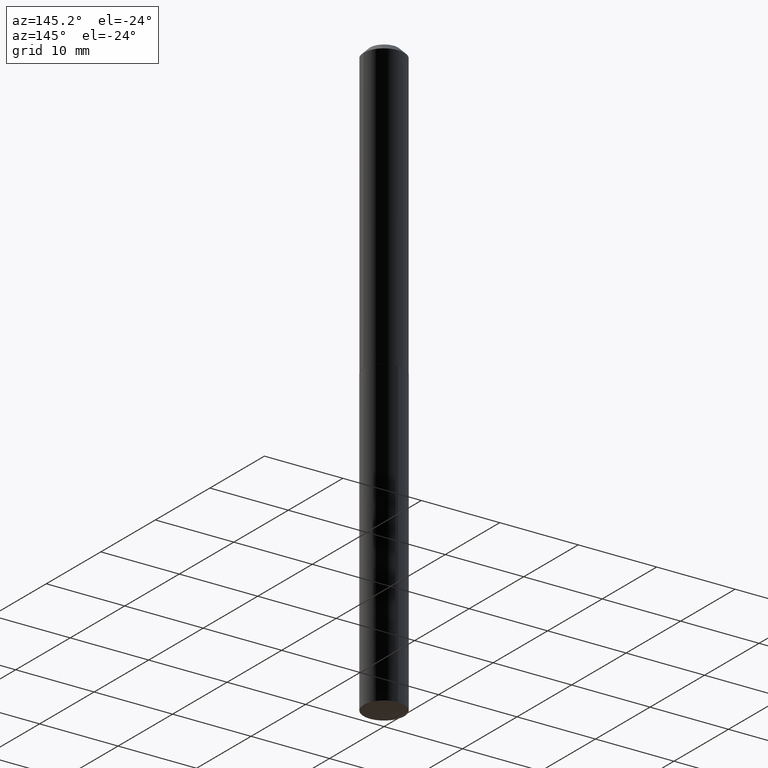
[diagram: clean part render]
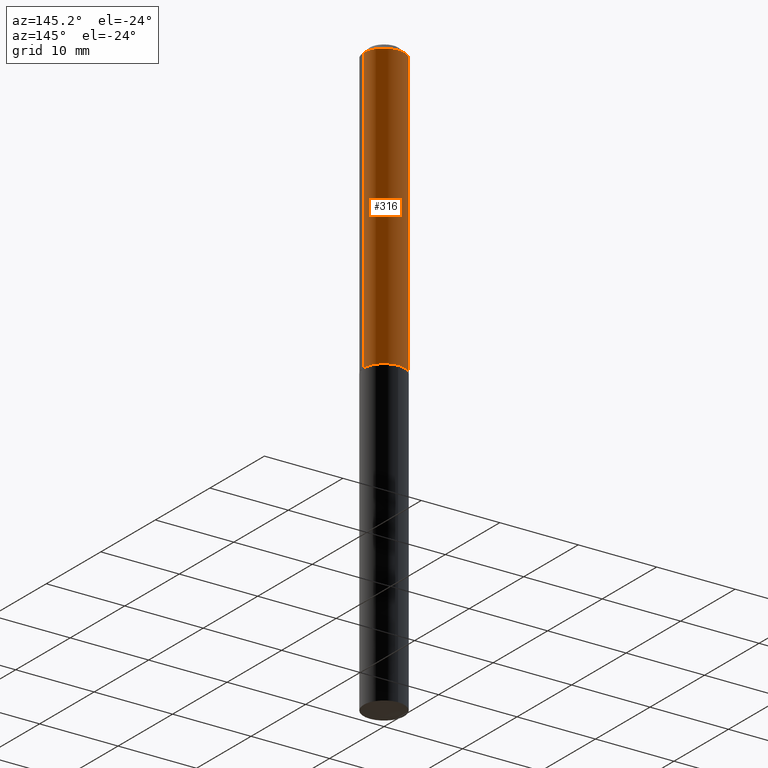
[diagram: same view with one face highlighted and labeled with its STEP entity id]
A machine part, auxiliary view. The second image highlights one B-rep face of the part: STEP entity #316.
In plain terms, the highlighted cylindrical surface (edge-blend (fillet) strip) has radius 2.5908 mm, axis along (-0, 0, 1).
Its self-contained STEP definition (entity closure, byte-faithful):
#1 = CARTESIAN_POINT ( 'NONE',  ( 7.642090019328598283E-31, -1.091087918388489651E-16, -0.03125000000000019429 ) ) ;
#2 = VERTEX_POINT ( 'NONE', #36 ) ;
#6 = ORIENTED_EDGE ( 'NONE', *, *, #367, .F. ) ;
#8 = VERTEX_POINT ( 'NONE', #282 ) ;
#23 = AXIS2_PLACEMENT_3D ( 'NONE', #208, #37, #273 ) ;
#33 = CYLINDRICAL_SURFACE ( 'NONE', #23, 0.1020000000000000767 ) ;
#34 = ORIENTED_EDGE ( 'NONE', *, *, #175, .T. ) ;
#36 = CARTESIAN_POINT ( 'NONE',  ( -0.1019999999999999934, -1.867234868448377340E-15, -0.03125000000000019429 ) ) ;
#37 = DIRECTION ( 'NONE',  ( -2.445468806185136597E-29, 3.491481338843145583E-15, 1.000000000000000000 ) ) ;
#65 = VERTEX_POINT ( 'NONE', #330 ) ;
#82 = AXIS2_PLACEMENT_3D ( 'NONE', #1, #278, #237 ) ;
#100 = CIRCLE ( 'NONE', #82, 0.1019999999999999934 ) ;
#102 = VERTEX_POINT ( 'NONE', #140 ) ;
#115 = DIRECTION ( 'NONE',  ( -2.445468806185136877E-29, 3.491481338843145188E-15, 1.000000000000000000 ) ) ;
#120 = VECTOR ( 'NONE', #115, 39.37007874015748143 ) ;
#140 = CARTESIAN_POINT ( 'NONE',  ( 0.1019999999999999934, -8.213709849628480961E-16, -0.03125000000000019429 ) ) ;
#175 = EDGE_CURVE ( 'NONE', #8, #2, #328, .T. ) ;
#183 = AXIS2_PLACEMENT_3D ( 'NONE', #303, #339, #336 ) ;
#207 = ORIENTED_EDGE ( 'NONE', *, *, #376, .T. ) ;
#208 = CARTESIAN_POINT ( 'NONE',  ( 0.000000000000000000, 0.000000000000000000, 0.000000000000000000 ) ) ;
#223 = EDGE_CURVE ( 'NONE', #65, #102, #350, .T. ) ;
#233 = CARTESIAN_POINT ( 'NONE',  ( 0.1020000000000000767, -7.122621931239997843E-16, 4.973700311311858208E-30 ) ) ;
#237 = DIRECTION ( 'NONE',  ( 1.000000000000000000, -6.982962677686266711E-15, 0.000000000000000000 ) ) ;
#271 = FACE_OUTER_BOUND ( 'NONE', #358, .T. ) ;
#273 = DIRECTION ( 'NONE',  ( 1.000000000000000000, -6.982962677686267499E-15, 4.876176775795935793E-29 ) ) ;
#278 = DIRECTION ( 'NONE',  ( -2.445468806185136597E-29, 3.491481338843145583E-15, 1.000000000000000000 ) ) ;
#282 = CARTESIAN_POINT ( 'NONE',  ( -0.1020000000000001739, -4.350114535533209201E-15, -1.453500000000000236 ) ) ;
#283 = VECTOR ( 'NONE', #388, 39.37007874015748143 ) ;
#303 = CARTESIAN_POINT ( 'NONE',  ( 3.554488909790096218E-29, -5.074868126008512823E-15, -1.453500000000000236 ) ) ;
#306 = CIRCLE ( 'NONE', #183, 0.1020000000000001739 ) ;
#316 = ADVANCED_FACE ( 'NONE', ( #271 ), #33, .T. ) ;
#328 = LINE ( 'NONE', #381, #283 ) ;
#330 = CARTESIAN_POINT ( 'NONE',  ( 0.1020000000000001739, -5.787130319132512311E-15, -1.453500000000000236 ) ) ;
#336 = DIRECTION ( 'NONE',  ( 1.000000000000000000, -6.982962677686263555E-15, 0.000000000000000000 ) ) ;
#339 = DIRECTION ( 'NONE',  ( -2.445468806185136597E-29, 3.491481338843145583E-15, 1.000000000000000000 ) ) ;
#350 = LINE ( 'NONE', #233, #120 ) ;
#358 = EDGE_LOOP ( 'NONE', ( #207, #34, #6, #372 ) ) ;
#367 = EDGE_CURVE ( 'NONE', #102, #2, #100, .T. ) ;
#372 = ORIENTED_EDGE ( 'NONE', *, *, #223, .F. ) ;
#376 = EDGE_CURVE ( 'NONE', #65, #8, #306, .T. ) ;
#381 = CARTESIAN_POINT ( 'NONE',  ( -0.1020000000000000767, 7.247535904753027347E-16, -5.017313792060008286E-30 ) ) ;
#388 = DIRECTION ( 'NONE',  ( -2.445468806185136877E-29, 3.491481338843145188E-15, 1.000000000000000000 ) ) ;